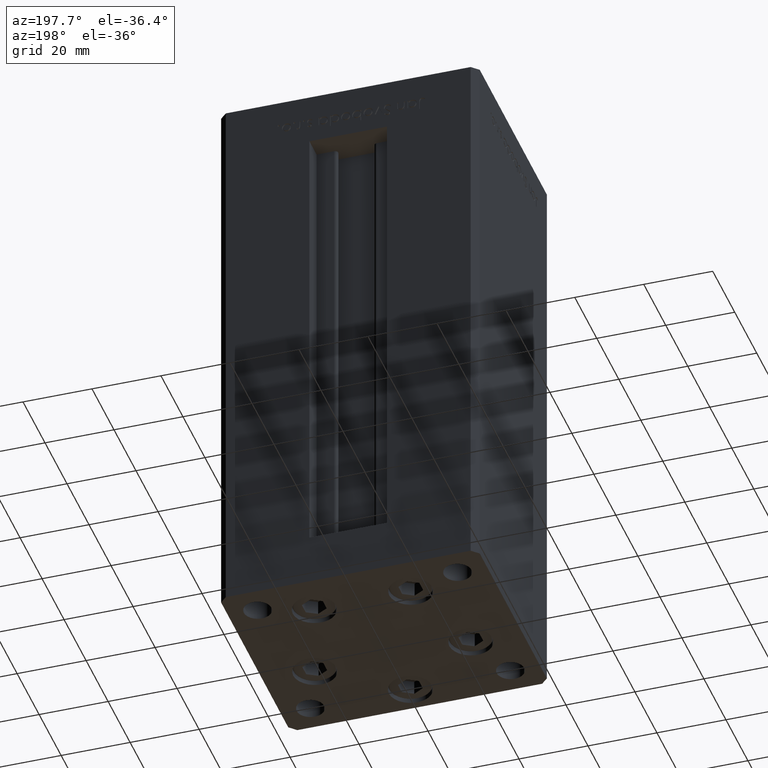
[diagram: clean part render]
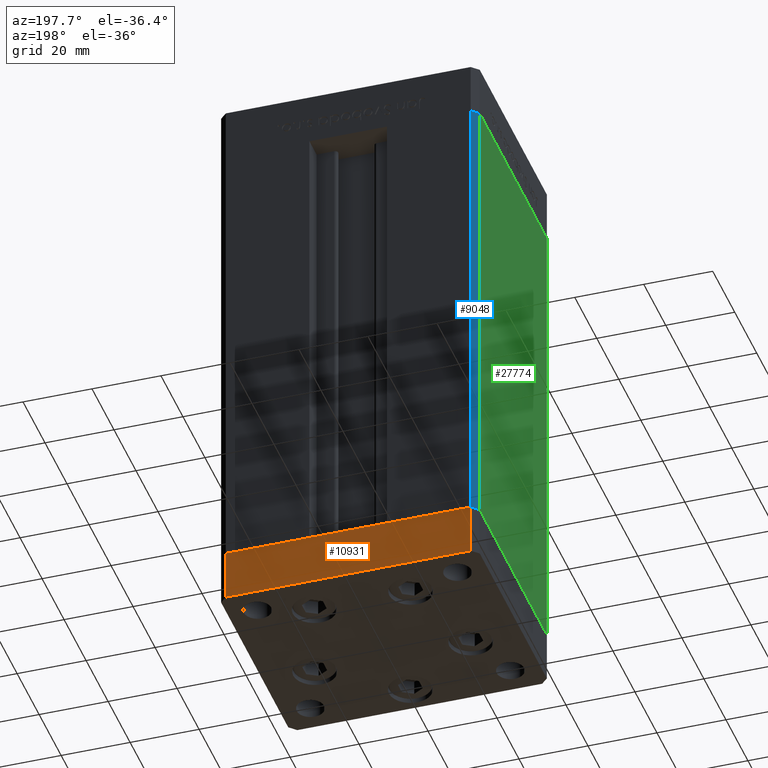
[diagram: same view with three faces highlighted in distinct colors, each labeled with its STEP entity id]
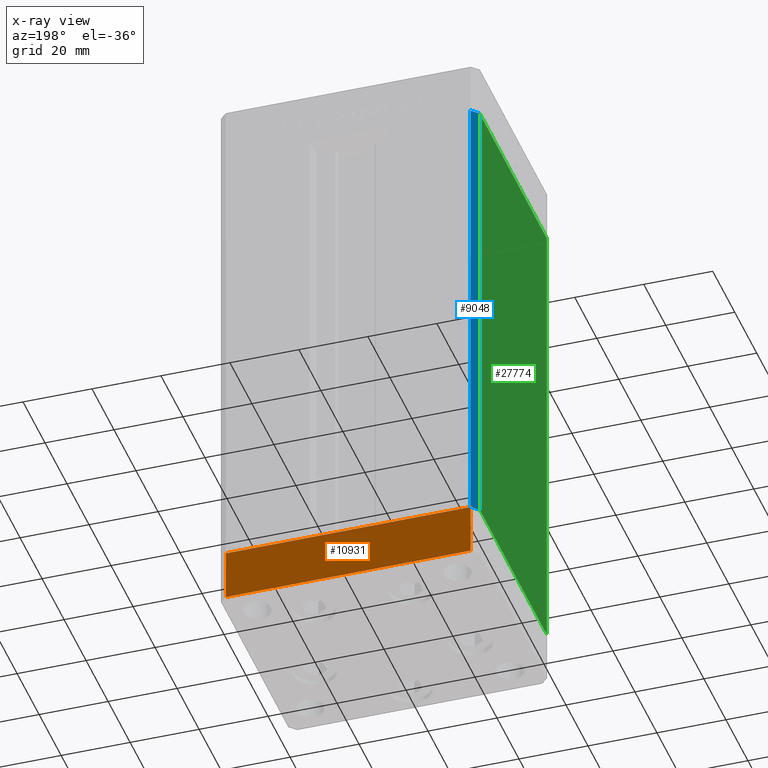
[diagram: x-ray of the same camera — body ghosted, the three highlighted faces saturated]
A machine part, auxiliary view with three faces highlighted in distinct colors.
The next image is the same camera in x-ray (body ghosted, the three faces saturated) — at least one of them is partly hidden behind the body in this view.
Their STEP definitions:

[orange] entity #10931 — the highlighted planar face has unit normal (0, 1, 0).
#2449 = AXIS2_PLACEMENT_3D ( 'NONE', #33369, #49494, #46836 ) ;
#3380 = VECTOR ( 'NONE', #41017, 1000.000000000000000 ) ;
#4035 = DIRECTION ( 'NONE',  ( 0.000000000000000000, 0.000000000000000000, 1.000000000000000000 ) ) ;
#5155 = PLANE ( 'NONE',  #2449 ) ;
#5637 = ORIENTED_EDGE ( 'NONE', *, *, #19991, .T. ) ;
#9065 = CARTESIAN_POINT ( 'NONE',  ( 35.49999999999992184, 32.50000000000000711, -15.00000000000000000 ) ) ;
#9277 = LINE ( 'NONE', #20648, #40492 ) ;
#10931 = ADVANCED_FACE ( 'NONE', ( #33110 ), #5155, .T. ) ;
#11156 = EDGE_CURVE ( 'NONE', #25775, #28379, #48914, .T. ) ;
#13686 = ORIENTED_EDGE ( 'NONE', *, *, #15892, .F. ) ;
#13804 = CARTESIAN_POINT ( 'NONE',  ( 35.49999999999992184, 32.50000000000000711, 0.000000000000000000 ) ) ;
#14544 = EDGE_CURVE ( 'NONE', #25775, #29666, #37038, .T. ) ;
#15223 = VECTOR ( 'NONE', #41284, 1000.000000000000000 ) ;
#15892 = EDGE_CURVE ( 'NONE', #28379, #50139, #45756, .T. ) ;
#19991 = EDGE_CURVE ( 'NONE', #29666, #50139, #9277, .T. ) ;
#20648 = CARTESIAN_POINT ( 'NONE',  ( -35.50000000000002842, 32.49999999999999289, -15.00000000000000000 ) ) ;
#24875 = CARTESIAN_POINT ( 'NONE',  ( 35.49999999999992184, 32.50000000000000711, -15.00000000000000000 ) ) ;
#25447 = CARTESIAN_POINT ( 'NONE',  ( -35.50000000000002842, 32.49999999999999289, 0.000000000000000000 ) ) ;
#25775 = VERTEX_POINT ( 'NONE', #49236 ) ;
#28233 = ORIENTED_EDGE ( 'NONE', *, *, #11156, .F. ) ;
#28379 = VERTEX_POINT ( 'NONE', #39627 ) ;
#29666 = VERTEX_POINT ( 'NONE', #46003 ) ;
#33110 = FACE_OUTER_BOUND ( 'NONE', #48169, .T. ) ;
#33369 = CARTESIAN_POINT ( 'NONE',  ( 35.49999999999992184, 32.50000000000000711, -15.00000000000000000 ) ) ;
#35476 = ORIENTED_EDGE ( 'NONE', *, *, #14544, .T. ) ;
#37038 = LINE ( 'NONE', #9065, #3380 ) ;
#39627 = CARTESIAN_POINT ( 'NONE',  ( 35.49999999999992184, 32.50000000000000711, 0.000000000000000000 ) ) ;
#40492 = VECTOR ( 'NONE', #4035, 1000.000000000000000 ) ;
#41017 = DIRECTION ( 'NONE',  ( -1.000000000000000000, -1.954618001100629052E-16, 0.000000000000000000 ) ) ;
#41284 = DIRECTION ( 'NONE',  ( -1.000000000000000000, -1.954618001100629052E-16, 0.000000000000000000 ) ) ;
#45756 = LINE ( 'NONE', #13804, #15223 ) ;
#46003 = CARTESIAN_POINT ( 'NONE',  ( -35.50000000000002842, 32.49999999999999289, -15.00000000000000000 ) ) ;
#46836 = DIRECTION ( 'NONE',  ( -1.000000000000000000, -1.954618001100629052E-16, 0.000000000000000000 ) ) ;
#47100 = VECTOR ( 'NONE', #49171, 1000.000000000000000 ) ;
#48169 = EDGE_LOOP ( 'NONE', ( #13686, #28233, #35476, #5637 ) ) ;
#48914 = LINE ( 'NONE', #24875, #47100 ) ;
#49171 = DIRECTION ( 'NONE',  ( 0.000000000000000000, 0.000000000000000000, 1.000000000000000000 ) ) ;
#49236 = CARTESIAN_POINT ( 'NONE',  ( 35.49999999999992184, 32.50000000000000711, -15.00000000000000000 ) ) ;
#49494 = DIRECTION ( 'NONE',  ( -1.954618001100629052E-16, 1.000000000000000000, 0.000000000000000000 ) ) ;
#50139 = VERTEX_POINT ( 'NONE', #25447 ) ;

[blue] entity #9048 — the highlighted planar face has unit normal (0.7071, -0.7071, 0).
#1296 = VECTOR ( 'NONE', #8084, 1000.000000000000000 ) ;
#2858 = PLANE ( 'NONE',  #31022 ) ;
#3314 = CARTESIAN_POINT ( 'NONE',  ( -35.50000000000000000, 32.49999999999999289, 136.0000000000000000 ) ) ;
#4699 = EDGE_CURVE ( 'NONE', #6143, #22817, #19952, .T. ) ;
#6143 = VERTEX_POINT ( 'NONE', #24541 ) ;
#6575 = CARTESIAN_POINT ( 'NONE',  ( -35.50000000000000000, 32.49999999999999289, 136.0000000000000000 ) ) ;
#8084 = DIRECTION ( 'NONE',  ( -0.000000000000000000, -0.000000000000000000, -1.000000000000000000 ) ) ;
#8622 = LINE ( 'NONE', #40825, #23722 ) ;
#9048 = ADVANCED_FACE ( 'NONE', ( #43248 ), #2858, .F. ) ;
#10256 = VECTOR ( 'NONE', #37843, 1000.000000000000114 ) ;
#12083 = CARTESIAN_POINT ( 'NONE',  ( -37.50000000000000711, 30.50000000000000000, 136.0000000000000000 ) ) ;
#13762 = ORIENTED_EDGE ( 'NONE', *, *, #24655, .F. ) ;
#16942 = VERTEX_POINT ( 'NONE', #3314 ) ;
#17066 = CARTESIAN_POINT ( 'NONE',  ( -37.50000000000000711, 30.50000000000000000, 0.000000000000000000 ) ) ;
#18514 = EDGE_CURVE ( 'NONE', #16942, #6143, #8622, .T. ) ;
#19952 = LINE ( 'NONE', #51106, #28554 ) ;
#20537 = VERTEX_POINT ( 'NONE', #12083 ) ;
#22817 = VERTEX_POINT ( 'NONE', #17066 ) ;
#22841 = DIRECTION ( 'NONE',  ( -0.7071067811865500152, -0.7071067811865451302, 0.000000000000000000 ) ) ;
#23722 = VECTOR ( 'NONE', #32880, 1000.000000000000000 ) ;
#24541 = CARTESIAN_POINT ( 'NONE',  ( -35.50000000000000000, 32.49999999999999289, 0.000000000000000000 ) ) ;
#24655 = EDGE_CURVE ( 'NONE', #16942, #20537, #33606, .T. ) ;
#26074 = DIRECTION ( 'NONE',  ( 0.7071067811865500152, 0.7071067811865451302, 0.000000000000000000 ) ) ;
#28055 = ORIENTED_EDGE ( 'NONE', *, *, #18514, .T. ) ;
#28554 = VECTOR ( 'NONE', #22841, 1000.000000000000114 ) ;
#31022 = AXIS2_PLACEMENT_3D ( 'NONE', #6575, #34778, #26074 ) ;
#32880 = DIRECTION ( 'NONE',  ( -0.000000000000000000, -0.000000000000000000, -1.000000000000000000 ) ) ;
#33606 = LINE ( 'NONE', #34127, #10256 ) ;
#34127 = CARTESIAN_POINT ( 'NONE',  ( -35.50000000000000000, 32.49999999999999289, 136.0000000000000000 ) ) ;
#34778 = DIRECTION ( 'NONE',  ( 0.7071067811865451302, -0.7071067811865500152, 0.000000000000000000 ) ) ;
#37843 = DIRECTION ( 'NONE',  ( -0.7071067811865500152, -0.7071067811865451302, 0.000000000000000000 ) ) ;
#38540 = ORIENTED_EDGE ( 'NONE', *, *, #39639, .F. ) ;
#38908 = EDGE_LOOP ( 'NONE', ( #47009, #38540, #13762, #28055 ) ) ;
#39639 = EDGE_CURVE ( 'NONE', #20537, #22817, #52154, .T. ) ;
#40825 = CARTESIAN_POINT ( 'NONE',  ( -35.50000000000000000, 32.49999999999999289, 136.0000000000000000 ) ) ;
#43248 = FACE_OUTER_BOUND ( 'NONE', #38908, .T. ) ;
#44239 = CARTESIAN_POINT ( 'NONE',  ( -37.50000000000000711, 30.50000000000000000, 136.0000000000000000 ) ) ;
#47009 = ORIENTED_EDGE ( 'NONE', *, *, #4699, .T. ) ;
#51106 = CARTESIAN_POINT ( 'NONE',  ( -35.50000000000000000, 32.49999999999999289, 0.000000000000000000 ) ) ;
#52154 = LINE ( 'NONE', #44239, #1296 ) ;

[green] entity #27774 — the highlighted planar face has unit normal (1, 0, 0).
#1296 = VECTOR ( 'NONE', #8084, 1000.000000000000000 ) ;
#1535 = VECTOR ( 'NONE', #47810, 1000.000000000000000 ) ;
#7050 = ORIENTED_EDGE ( 'NONE', *, *, #10121, .F. ) ;
#7436 = VECTOR ( 'NONE', #47011, 1000.000000000000000 ) ;
#7827 = EDGE_CURVE ( 'NONE', #22605, #20080, #22184, .T. ) ;
#8084 = DIRECTION ( 'NONE',  ( -0.000000000000000000, -0.000000000000000000, -1.000000000000000000 ) ) ;
#10121 = EDGE_CURVE ( 'NONE', #20537, #22605, #19835, .T. ) ;
#11670 = LINE ( 'NONE', #27750, #50117 ) ;
#11929 = DIRECTION ( 'NONE',  ( 2.275047181608927644E-16, -1.000000000000000000, 0.000000000000000000 ) ) ;
#12083 = CARTESIAN_POINT ( 'NONE',  ( -37.50000000000000711, 30.50000000000000000, 136.0000000000000000 ) ) ;
#15741 = EDGE_LOOP ( 'NONE', ( #24422, #47123, #7050, #30111 ) ) ;
#17066 = CARTESIAN_POINT ( 'NONE',  ( -37.50000000000000711, 30.50000000000000000, 0.000000000000000000 ) ) ;
#19770 = DIRECTION ( 'NONE',  ( -2.275047181608927644E-16, 1.000000000000000000, 0.000000000000000000 ) ) ;
#19835 = LINE ( 'NONE', #36420, #1535 ) ;
#20027 = DIRECTION ( 'NONE',  ( 1.000000000000000000, 2.275047181608927644E-16, -0.000000000000000000 ) ) ;
#20080 = VERTEX_POINT ( 'NONE', #21924 ) ;
#20537 = VERTEX_POINT ( 'NONE', #12083 ) ;
#21924 = CARTESIAN_POINT ( 'NONE',  ( -37.49999999999999289, -30.50000000000000000, 0.000000000000000000 ) ) ;
#22184 = LINE ( 'NONE', #30344, #7436 ) ;
#22605 = VERTEX_POINT ( 'NONE', #35545 ) ;
#22817 = VERTEX_POINT ( 'NONE', #17066 ) ;
#24422 = ORIENTED_EDGE ( 'NONE', *, *, #32882, .T. ) ;
#27750 = CARTESIAN_POINT ( 'NONE',  ( -37.50000000000000711, 30.50000000000000000, 0.000000000000000000 ) ) ;
#27774 = ADVANCED_FACE ( 'NONE', ( #47752 ), #39819, .F. ) ;
#30111 = ORIENTED_EDGE ( 'NONE', *, *, #39639, .T. ) ;
#30344 = CARTESIAN_POINT ( 'NONE',  ( -37.49999999999999289, -30.50000000000000000, 136.0000000000000000 ) ) ;
#32882 = EDGE_CURVE ( 'NONE', #22817, #20080, #11670, .T. ) ;
#35545 = CARTESIAN_POINT ( 'NONE',  ( -37.49999999999999289, -30.50000000000000000, 136.0000000000000000 ) ) ;
#36106 = CARTESIAN_POINT ( 'NONE',  ( -37.50000000000000711, 30.50000000000000000, 136.0000000000000000 ) ) ;
#36420 = CARTESIAN_POINT ( 'NONE',  ( -37.50000000000000711, 30.50000000000000000, 136.0000000000000000 ) ) ;
#39639 = EDGE_CURVE ( 'NONE', #20537, #22817, #52154, .T. ) ;
#39819 = PLANE ( 'NONE',  #51650 ) ;
#44239 = CARTESIAN_POINT ( 'NONE',  ( -37.50000000000000711, 30.50000000000000000, 136.0000000000000000 ) ) ;
#47011 = DIRECTION ( 'NONE',  ( -0.000000000000000000, -0.000000000000000000, -1.000000000000000000 ) ) ;
#47123 = ORIENTED_EDGE ( 'NONE', *, *, #7827, .F. ) ;
#47752 = FACE_OUTER_BOUND ( 'NONE', #15741, .T. ) ;
#47810 = DIRECTION ( 'NONE',  ( 2.275047181608927644E-16, -1.000000000000000000, 0.000000000000000000 ) ) ;
#50117 = VECTOR ( 'NONE', #11929, 1000.000000000000000 ) ;
#51650 = AXIS2_PLACEMENT_3D ( 'NONE', #36106, #20027, #19770 ) ;
#52154 = LINE ( 'NONE', #44239, #1296 ) ;